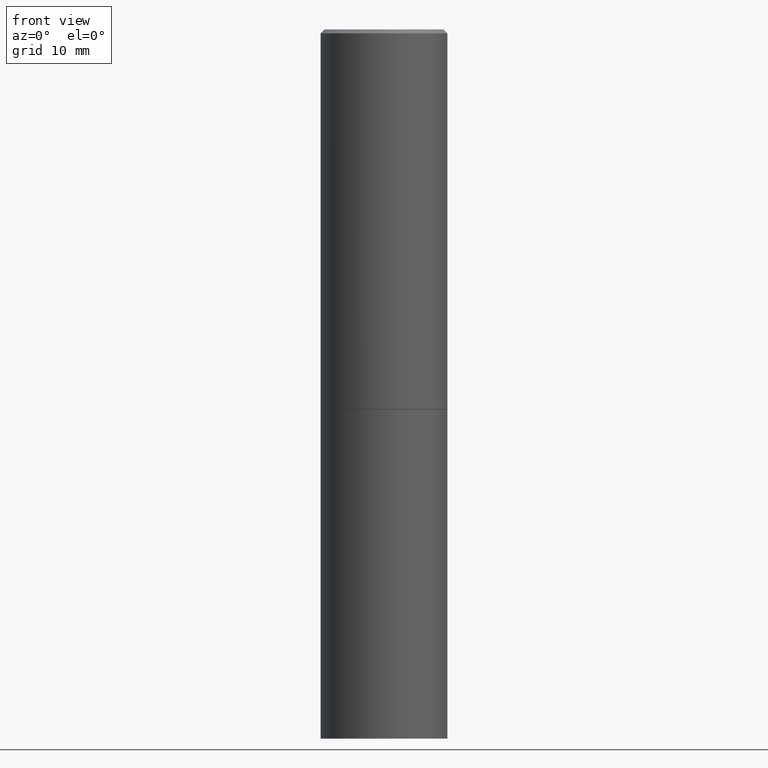
[diagram: clean part render]
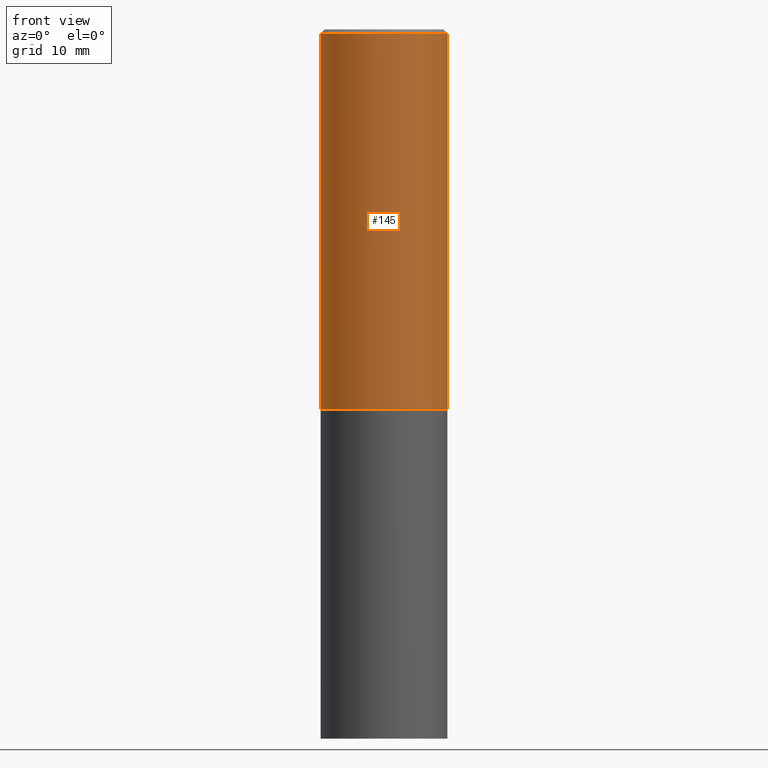
[diagram: same view with one face highlighted and labeled with its STEP entity id]
A machine part, front view. The second image highlights one B-rep face of the part: STEP entity #145.
In plain terms, the highlighted cylindrical surface (partial cylindrical patch) has radius 7.9375 mm, axis along (-0, 0, 1).
Its self-contained STEP definition (entity closure, byte-faithful):
#9 = ORIENTED_EDGE ( 'NONE', *, *, #37, .F. ) ;
#11 = LINE ( 'NONE', #280, #111 ) ;
#18 = DIRECTION ( 'NONE',  ( 1.000000000000000000, -6.982962677686266711E-15, 0.000000000000000000 ) ) ;
#23 = VERTEX_POINT ( 'NONE', #378 ) ;
#37 = EDGE_CURVE ( 'NONE', #423, #382, #11, .T. ) ;
#45 = AXIS2_PLACEMENT_3D ( 'NONE', #189, #324, #18 ) ;
#62 = VECTOR ( 'NONE', #333, 39.37007874015748143 ) ;
#86 = CARTESIAN_POINT ( 'NONE',  ( 0.000000000000000000, 0.000000000000000000, 0.000000000000000000 ) ) ;
#111 = VECTOR ( 'NONE', #117, 39.37007874015748143 ) ;
#117 = DIRECTION ( 'NONE',  ( -2.445468806185136877E-29, 3.491481338843145188E-15, 1.000000000000000000 ) ) ;
#138 = EDGE_LOOP ( 'NONE', ( #9, #144, #384, #334 ) ) ;
#140 = CARTESIAN_POINT ( 'NONE',  ( 4.582808542790944955E-29, -6.543036028992054122E-15, -1.873999999999999666 ) ) ;
#144 = ORIENTED_EDGE ( 'NONE', *, *, #404, .T. ) ;
#145 = ADVANCED_FACE ( 'NONE', ( #257 ), #253, .T. ) ;
#166 = DIRECTION ( 'NONE',  ( -2.445468806185136597E-29, 3.491481338843145583E-15, 1.000000000000000000 ) ) ;
#189 = CARTESIAN_POINT ( 'NONE',  ( 4.890937612370288923E-31, -6.982962677686312563E-17, -0.02000000000000006287 ) ) ;
#232 = CARTESIAN_POINT ( 'NONE',  ( 0.3125000000000000000, -8.725211865769012469E-15, -1.873999999999999666 ) ) ;
#237 = CIRCLE ( 'NONE', #45, 0.3124999999999997224 ) ;
#251 = EDGE_CURVE ( 'NONE', #382, #23, #237, .T. ) ;
#253 = CYLINDRICAL_SURFACE ( 'NONE', #431, 0.3124999999999998890 ) ;
#257 = FACE_OUTER_BOUND ( 'NONE', #138, .T. ) ;
#259 = CARTESIAN_POINT ( 'NONE',  ( -0.3125000000000000000, -1.085986778634144643E-15, -1.873999999999999666 ) ) ;
#280 = CARTESIAN_POINT ( 'NONE',  ( -0.3124999999999998890, 2.220446049250312292E-15, -1.537167215704657391E-29 ) ) ;
#324 = DIRECTION ( 'NONE',  ( -2.445468806185136597E-29, 3.491481338843145583E-15, 1.000000000000000000 ) ) ;
#333 = DIRECTION ( 'NONE',  ( -2.445468806185136877E-29, 3.491481338843145188E-15, 1.000000000000000000 ) ) ;
#334 = ORIENTED_EDGE ( 'NONE', *, *, #251, .F. ) ;
#337 = LINE ( 'NONE', #366, #62 ) ;
#347 = CIRCLE ( 'NONE', #414, 0.3125000000000000000 ) ;
#366 = CARTESIAN_POINT ( 'NONE',  ( 0.3124999999999998890, -2.182175836776957558E-15, 1.523805242436229235E-29 ) ) ;
#374 = VERTEX_POINT ( 'NONE', #232 ) ;
#378 = CARTESIAN_POINT ( 'NONE',  ( 0.3124999999999997224, -2.213735251080464939E-15, -0.02000000000000006287 ) ) ;
#382 = VERTEX_POINT ( 'NONE', #401 ) ;
#384 = ORIENTED_EDGE ( 'NONE', *, *, #396, .T. ) ;
#385 = DIRECTION ( 'NONE',  ( 1.000000000000000000, -6.982962677686266711E-15, 4.876176775795935232E-29 ) ) ;
#396 = EDGE_CURVE ( 'NONE', #374, #23, #337, .T. ) ;
#401 = CARTESIAN_POINT ( 'NONE',  ( -0.3124999999999997224, 2.112346210000093471E-15, -0.02000000000000006287 ) ) ;
#403 = DIRECTION ( 'NONE',  ( 1.000000000000000000, -6.982962677686265133E-15, 0.000000000000000000 ) ) ;
#404 = EDGE_CURVE ( 'NONE', #423, #374, #347, .T. ) ;
#414 = AXIS2_PLACEMENT_3D ( 'NONE', #140, #166, #403 ) ;
#423 = VERTEX_POINT ( 'NONE', #259 ) ;
#427 = DIRECTION ( 'NONE',  ( -2.445468806185136597E-29, 3.491481338843145583E-15, 1.000000000000000000 ) ) ;
#431 = AXIS2_PLACEMENT_3D ( 'NONE', #86, #427, #385 ) ;